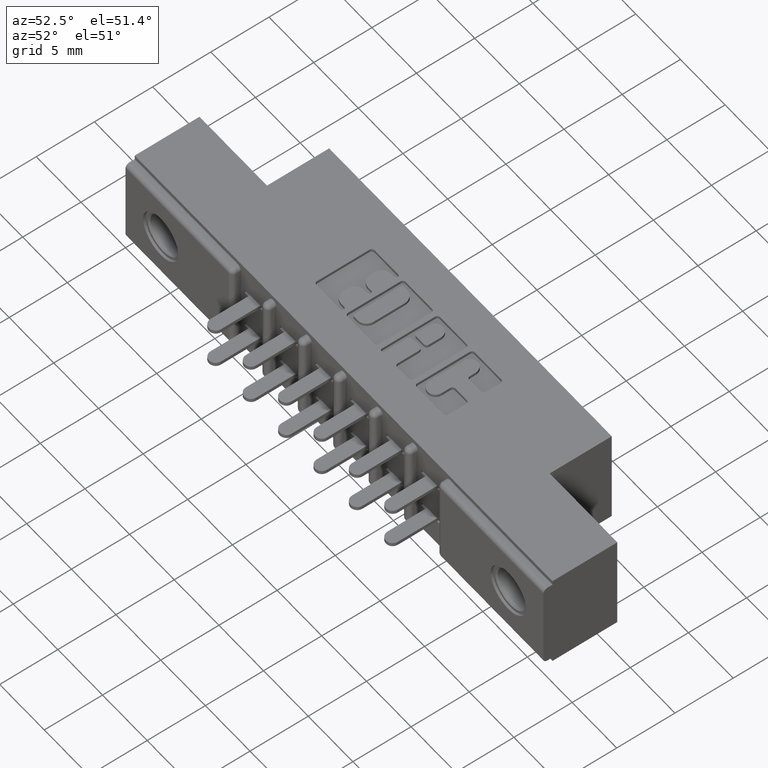
[diagram: clean part render]
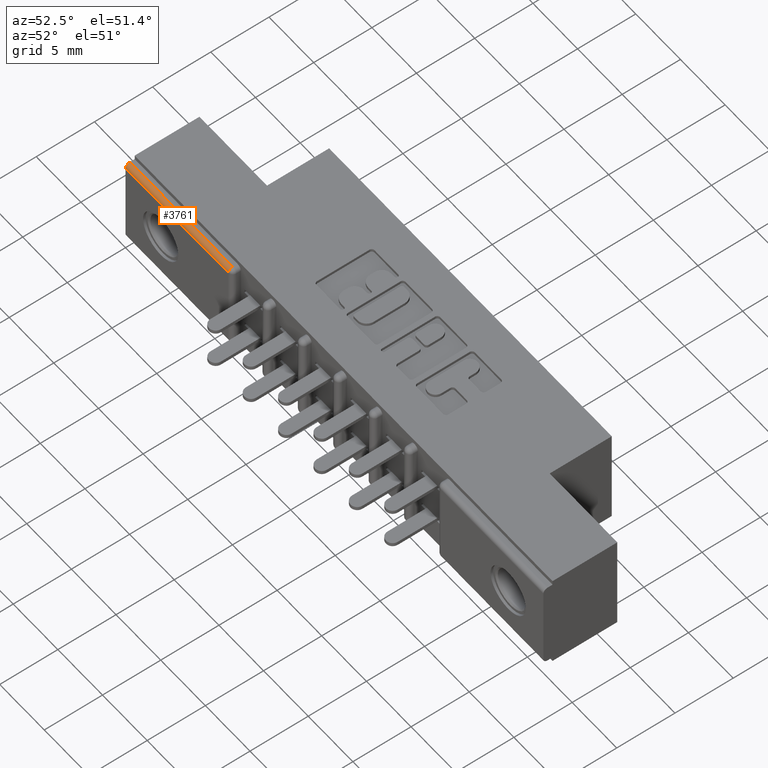
[diagram: same view with one face highlighted and labeled with its STEP entity id]
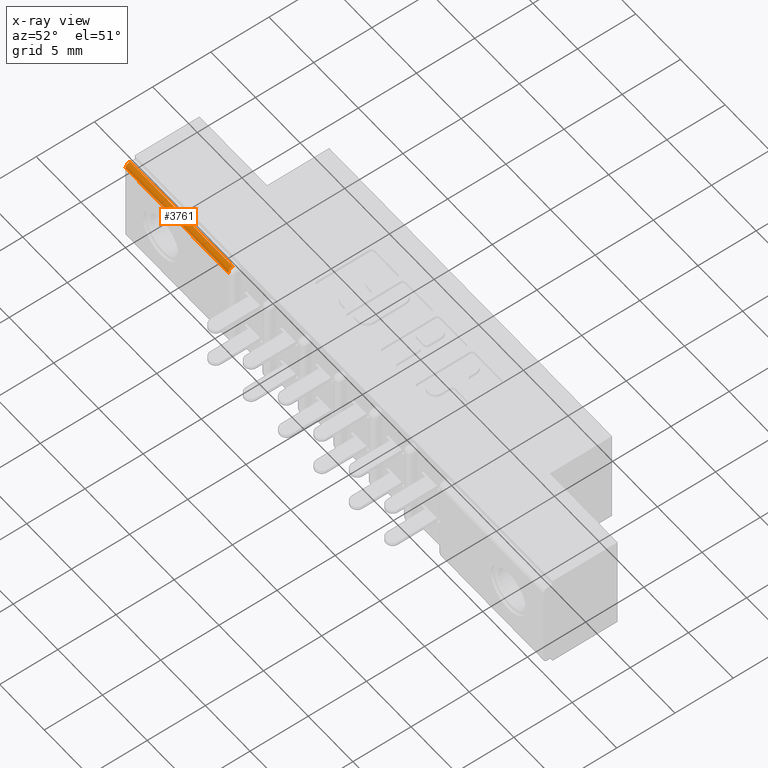
[diagram: x-ray of the same camera — body ghosted, the highlighted face saturated]
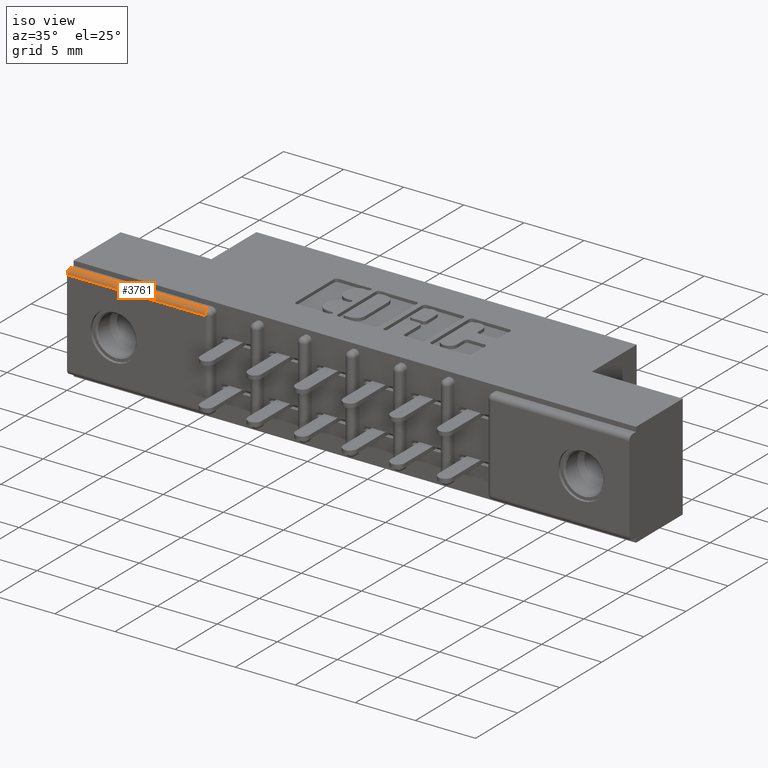
[diagram: same view with one face highlighted and labeled with its STEP entity id]
A machine part, auxiliary view. The second image highlights one B-rep face of the part: STEP entity #3761.
The next image is the same camera in x-ray: the body ghosted, the highlighted face saturated — about 0% of this face is hidden behind the body in this view.
A second angle (iso view) of the same face is appended — the face is thin or edge-on in the first view.
In plain terms, the highlighted cylindrical surface (edge-blend (fillet) strip) has radius 0.381 mm, axis along (1, 0, 0).
Its self-contained STEP definition (entity closure, byte-faithful):
#164 = CARTESIAN_POINT ( 'NONE',  ( 0.0000000000000000000, 0.0000000000000000000, -0.02999999999999995400 ) ) ;
#237 = VECTOR ( 'NONE', #5734, 39.37007874015748100 ) ;
#474 = DIRECTION ( 'NONE',  ( -1.000000000000000000, 0.0000000000000000000, 0.0000000000000000000 ) ) ;
#1562 = CARTESIAN_POINT ( 'NONE',  ( 0.0000000000000000000, 0.01499999999999999900, -0.02999999999999995400 ) ) ;
#2045 = DIRECTION ( 'NONE',  ( -1.000000000000000000, -0.0000000000000000000, -0.0000000000000000000 ) ) ;
#2094 = ORIENTED_EDGE ( 'NONE', *, *, #8348, .T. ) ;
#2465 = CYLINDRICAL_SURFACE ( 'NONE', #11959, 0.01500000000000000300 ) ;
#2661 = LINE ( 'NONE', #7672, #5255 ) ;
#2667 = VERTEX_POINT ( 'NONE', #7473 ) ;
#2920 = CIRCLE ( 'NONE', #11865, 0.01500000000000000300 ) ;
#2966 = EDGE_CURVE ( 'NONE', #8305, #11521, #2920, .T. ) ;
#3436 = DIRECTION ( 'NONE',  ( 0.0000000000000000000, 0.0000000000000000000, -1.000000000000000000 ) ) ;
#3761 = ADVANCED_FACE ( 'NONE', ( #5356 ), #2465, .T. ) ;
#4272 = DIRECTION ( 'NONE',  ( -1.000000000000000000, 0.0000000000000000000, -0.0000000000000000000 ) ) ;
#4301 = CARTESIAN_POINT ( 'NONE',  ( 0.0000000000000000000, 0.01499999999999999900, -0.01499999999999997700 ) ) ;
#5070 = ORIENTED_EDGE ( 'NONE', *, *, #9564, .F. ) ;
#5255 = VECTOR ( 'NONE', #474, 39.37007874015748100 ) ;
#5356 = FACE_OUTER_BOUND ( 'NONE', #10746, .T. ) ;
#5734 = DIRECTION ( 'NONE',  ( 1.000000000000000000, -0.0000000000000000000, -0.0000000000000000000 ) ) ;
#5759 = DIRECTION ( 'NONE',  ( 0.0000000000000000000, 8.537024980200820800E-016, -1.000000000000000000 ) ) ;
#5854 = CARTESIAN_POINT ( 'NONE',  ( 1.842000000000000100, 0.01499999999999999900, -0.01499999999999997700 ) ) ;
#7006 = LINE ( 'NONE', #5854, #237 ) ;
#7074 = CARTESIAN_POINT ( 'NONE',  ( 0.0000000000000000000, 0.01499999999999999900, -0.02999999999999995400 ) ) ;
#7473 = CARTESIAN_POINT ( 'NONE',  ( 0.4530000000000003500, 0.01499999999999999900, -0.01499999999999997700 ) ) ;
#7481 = ORIENTED_EDGE ( 'NONE', *, *, #10524, .F. ) ;
#7672 = CARTESIAN_POINT ( 'NONE',  ( 0.0000000000000000000, 0.0000000000000000000, -0.02999999999999995400 ) ) ;
#8032 = AXIS2_PLACEMENT_3D ( 'NONE', #11327, #2045, #5759 ) ;
#8184 = ORIENTED_EDGE ( 'NONE', *, *, #2966, .F. ) ;
#8305 = VERTEX_POINT ( 'NONE', #164 ) ;
#8348 = EDGE_CURVE ( 'NONE', #11585, #2667, #8413, .T. ) ;
#8413 = CIRCLE ( 'NONE', #8032, 0.01500000000000000300 ) ;
#9564 = EDGE_CURVE ( 'NONE', #11521, #2667, #7006, .T. ) ;
#10524 = EDGE_CURVE ( 'NONE', #11585, #8305, #2661, .T. ) ;
#10746 = EDGE_LOOP ( 'NONE', ( #7481, #2094, #5070, #8184 ) ) ;
#10771 = DIRECTION ( 'NONE',  ( 1.000000000000000000, 0.0000000000000000000, 0.0000000000000000000 ) ) ;
#10799 = DIRECTION ( 'NONE',  ( 0.0000000000000000000, 8.537024980200820800E-016, -1.000000000000000000 ) ) ;
#11028 = CARTESIAN_POINT ( 'NONE',  ( 0.4530000000000004000, 0.0000000000000000000, -0.02999999999999995400 ) ) ;
#11327 = CARTESIAN_POINT ( 'NONE',  ( 0.4530000000000004000, 0.01499999999999999900, -0.02999999999999995400 ) ) ;
#11521 = VERTEX_POINT ( 'NONE', #4301 ) ;
#11585 = VERTEX_POINT ( 'NONE', #11028 ) ;
#11865 = AXIS2_PLACEMENT_3D ( 'NONE', #1562, #4272, #10799 ) ;
#11959 = AXIS2_PLACEMENT_3D ( 'NONE', #7074, #10771, #3436 ) ;